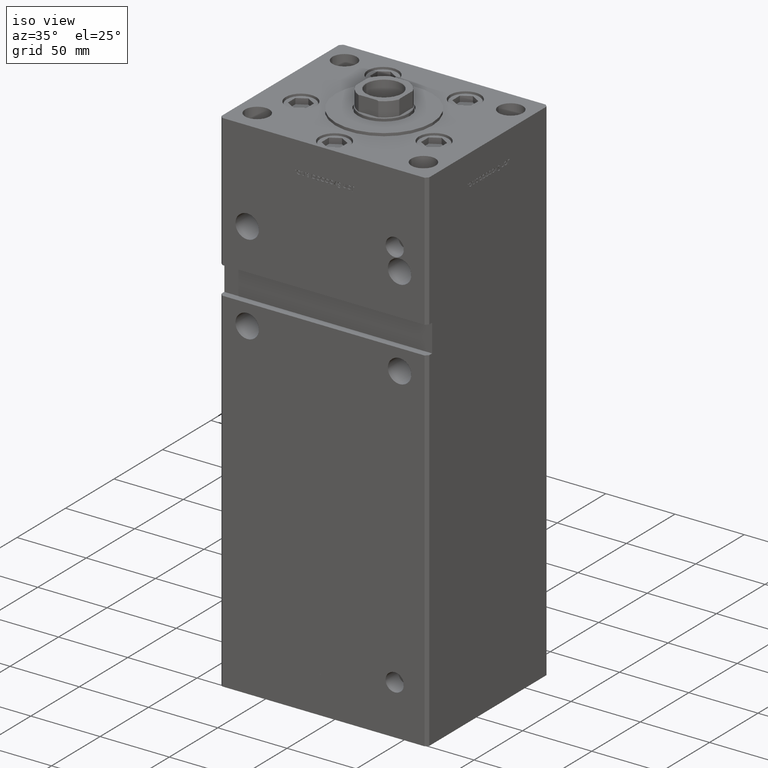
[diagram: clean part render]
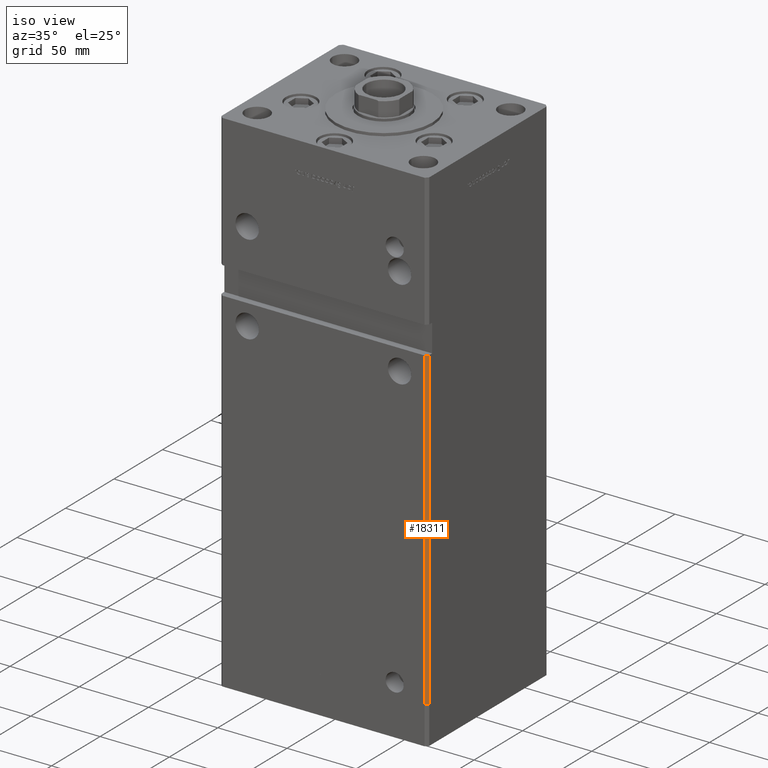
[diagram: same view with one face highlighted and labeled with its STEP entity id]
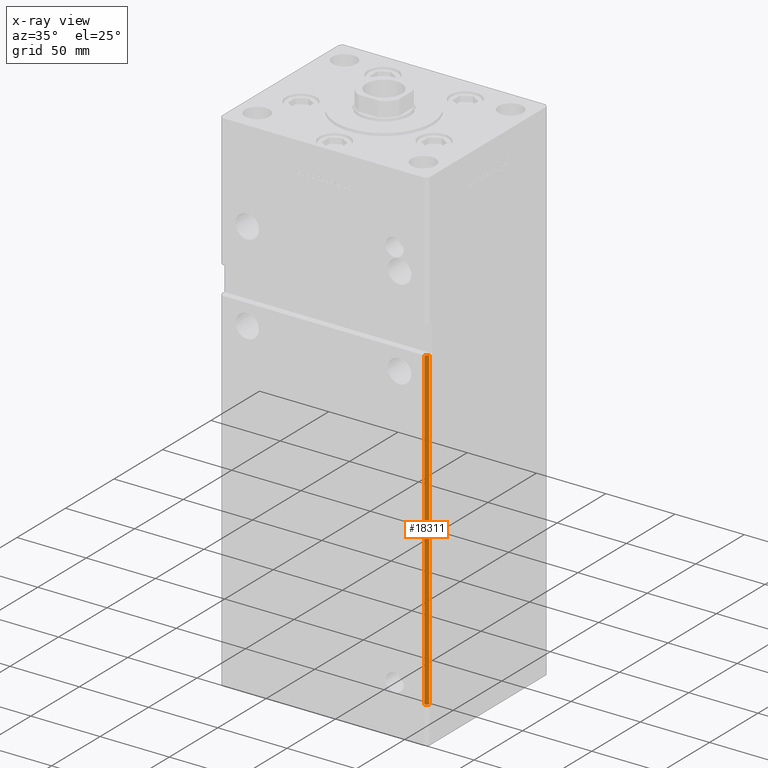
[diagram: x-ray of the same camera — body ghosted, the highlighted face saturated]
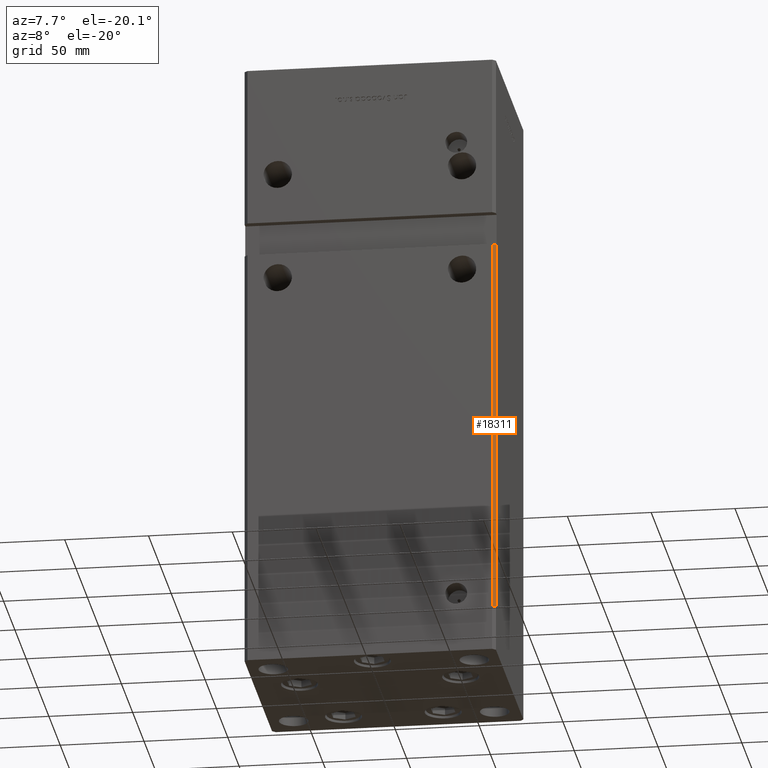
[diagram: same view with one face highlighted and labeled with its STEP entity id]
A machine part, iso view. The second image highlights one B-rep face of the part: STEP entity #18311.
The next image is the same camera in x-ray: the body ghosted, the highlighted face saturated — about 0% of this face is hidden behind the body in this view.
A second angle (auxiliary view) of the same face is appended — the face is thin or edge-on in the first view.
In plain terms, the highlighted planar face has unit normal (0.7071, -0.7071, 0).
Its self-contained STEP definition (entity closure, byte-faithful):
#336 = LINE ( 'NONE', #41350, #22166 ) ;
#2380 = CARTESIAN_POINT ( 'NONE',  ( 74.99999999999998579, -60.50000000000000000, 0.000000000000000000 ) ) ;
#4048 = PLANE ( 'NONE',  #22994 ) ;
#5429 = EDGE_CURVE ( 'NONE', #16052, #5719, #47258, .T. ) ;
#5719 = VERTEX_POINT ( 'NONE', #7189 ) ;
#5799 = ORIENTED_EDGE ( 'NONE', *, *, #5429, .F. ) ;
#6663 = DIRECTION ( 'NONE',  ( -0.000000000000000000, -0.000000000000000000, -1.000000000000000000 ) ) ;
#7189 = CARTESIAN_POINT ( 'NONE',  ( 74.99999999999998579, -60.50000000000000000, 228.0000000000000000 ) ) ;
#8596 = DIRECTION ( 'NONE',  ( 0.7071067811865474617, 0.7071067811865474617, 0.000000000000000000 ) ) ;
#9111 = CARTESIAN_POINT ( 'NONE',  ( 74.99999999999998579, -60.50000000000000000, 317.0000000000000000 ) ) ;
#9597 = VECTOR ( 'NONE', #6663, 1000.000000000000000 ) ;
#9918 = VECTOR ( 'NONE', #21795, 1000.000000000000114 ) ;
#11329 = LINE ( 'NONE', #47241, #24879 ) ;
#12019 = ORIENTED_EDGE ( 'NONE', *, *, #19734, .F. ) ;
#12353 = DIRECTION ( 'NONE',  ( 0.7071067811865475727, -0.7071067811865475727, 0.000000000000000000 ) ) ;
#12930 = EDGE_LOOP ( 'NONE', ( #5799, #31332, #12019, #48468 ) ) ;
#16052 = VERTEX_POINT ( 'NONE', #40610 ) ;
#16676 = DIRECTION ( 'NONE',  ( -0.7071067811865474617, -0.7071067811865474617, 0.000000000000000000 ) ) ;
#18311 = ADVANCED_FACE ( 'NONE', ( #37538 ), #4048, .T. ) ;
#19734 = EDGE_CURVE ( 'NONE', #43563, #32517, #336, .T. ) ;
#21689 = LINE ( 'NONE', #41819, #9597 ) ;
#21795 = DIRECTION ( 'NONE',  ( 0.7071067811865474617, 0.7071067811865474617, 0.000000000000000000 ) ) ;
#22166 = VECTOR ( 'NONE', #16676, 1000.000000000000114 ) ;
#22994 = AXIS2_PLACEMENT_3D ( 'NONE', #9111, #12353, #8596 ) ;
#23697 = EDGE_CURVE ( 'NONE', #16052, #32517, #11329, .T. ) ;
#24879 = VECTOR ( 'NONE', #27671, 1000.000000000000000 ) ;
#27671 = DIRECTION ( 'NONE',  ( -0.000000000000000000, -0.000000000000000000, -1.000000000000000000 ) ) ;
#31332 = ORIENTED_EDGE ( 'NONE', *, *, #23697, .T. ) ;
#32246 = CARTESIAN_POINT ( 'NONE',  ( 72.99999999999998579, -62.50000000000000000, 0.000000000000000000 ) ) ;
#32517 = VERTEX_POINT ( 'NONE', #32246 ) ;
#37538 = FACE_OUTER_BOUND ( 'NONE', #12930, .T. ) ;
#40610 = CARTESIAN_POINT ( 'NONE',  ( 72.99999999999998579, -62.50000000000000000, 228.0000000000000000 ) ) ;
#41350 = CARTESIAN_POINT ( 'NONE',  ( 74.99999999999998579, -60.50000000000000000, 0.000000000000000000 ) ) ;
#41819 = CARTESIAN_POINT ( 'NONE',  ( 74.99999999999998579, -60.50000000000000000, 317.0000000000000000 ) ) ;
#42437 = CARTESIAN_POINT ( 'NONE',  ( 74.99999999999998579, -60.50000000000000000, 228.0000000000000000 ) ) ;
#43563 = VERTEX_POINT ( 'NONE', #2380 ) ;
#47241 = CARTESIAN_POINT ( 'NONE',  ( 72.99999999999998579, -62.50000000000000000, 317.0000000000000000 ) ) ;
#47258 = LINE ( 'NONE', #42437, #9918 ) ;
#48287 = EDGE_CURVE ( 'NONE', #5719, #43563, #21689, .T. ) ;
#48468 = ORIENTED_EDGE ( 'NONE', *, *, #48287, .F. ) ;